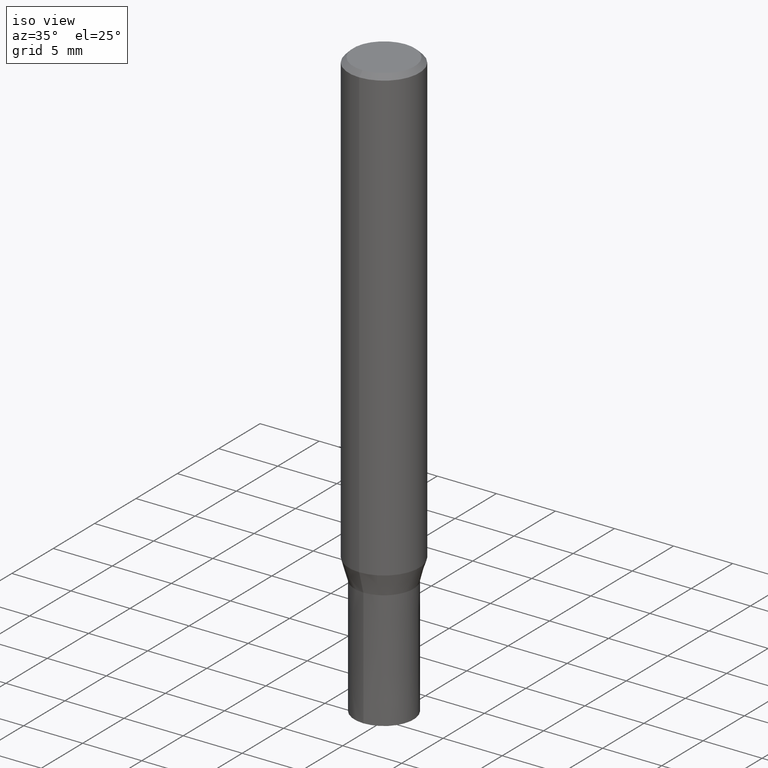
[diagram: clean part render]
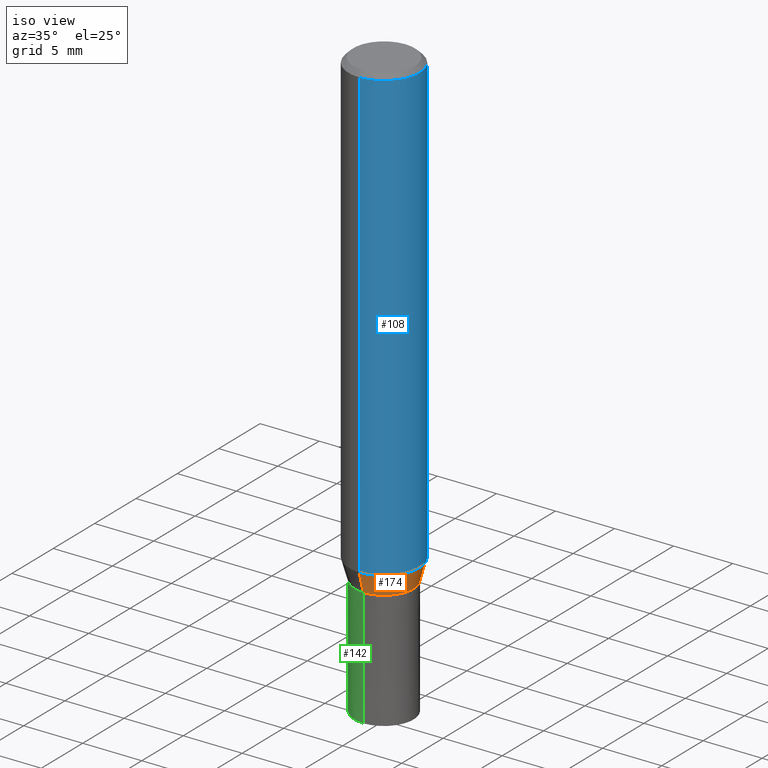
[diagram: same view with three faces highlighted in distinct colors, each labeled with its STEP entity id]
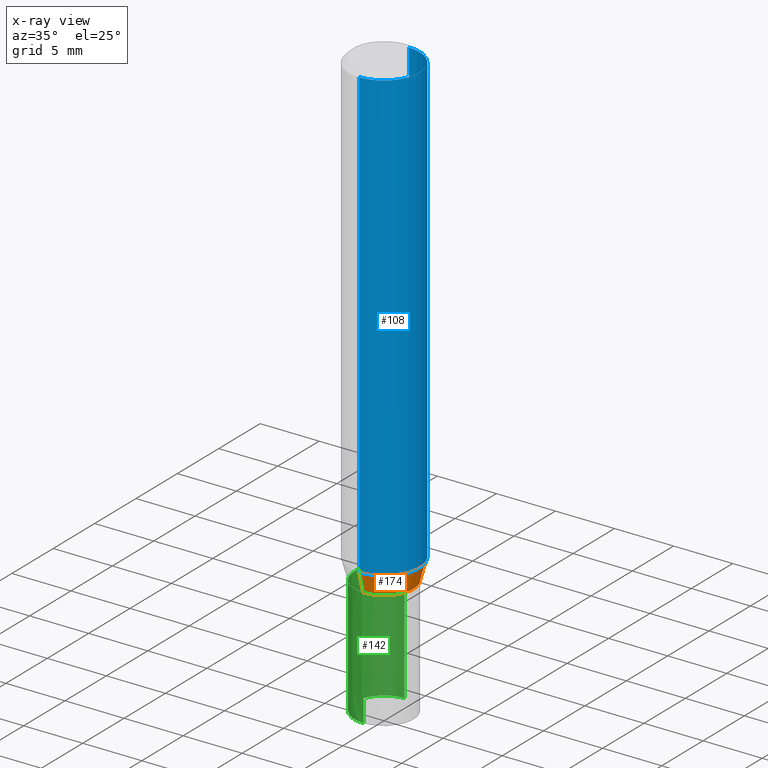
[diagram: x-ray of the same camera — body ghosted, the three highlighted faces saturated]
A machine part, iso view with three faces highlighted in distinct colors.
The next image is the same camera in x-ray (body ghosted, the three faces saturated) — at least one of them is partly hidden behind the body in this view.
Their STEP definitions:

[orange] entity #174 — the highlighted conical surface has half-angle 15.997 deg.
#128=VERTEX_POINT('',#257);
#130=EDGE_CURVE('',#172,#128,#259,.T.);
#132=VERTEX_POINT('',#261);
#134=EDGE_CURVE('',#128,#146,#263,.T.);
#144=EDGE_CURVE('',#172,#132,#275,.T.);
#146=VERTEX_POINT('',#277);
#172=VERTEX_POINT('',#305);
#174=ADVANCED_FACE('',(#307),#308,.T.);
#176=EDGE_CURVE('',#146,#132,#310,.T.);
#257=CARTESIAN_POINT('',(0.0,2.49995,-40.0));
#259=LINE('',#396,#397);
#261=CARTESIAN_POINT('',(3.67375783114944E-016,-2.99995,-38.256));
#263=CIRCLE('',#402,2.49995);
#275=CIRCLE('',#416,2.99995);
#277=CARTESIAN_POINT('',(3.06145465423825E-016,-2.49995,-40.0));
#305=CARTESIAN_POINT('',(0.0,2.99995,-38.256));
#307=FACE_OUTER_BOUND('',#458,.T.);
#308=CONICAL_SURFACE('',#459,2.74995,0.279208199033747);
#310=LINE('',#462,#463);
#396=CARTESIAN_POINT('',(-3.36760624269385E-016,2.74995,-39.128));
#397=VECTOR('',#547,1.0);
#402=AXIS2_PLACEMENT_3D('',#548,#549,#550);
#416=AXIS2_PLACEMENT_3D('',#569,#570,#571);
#458=EDGE_LOOP('',(#604,#605,#606,#607));
#459=AXIS2_PLACEMENT_3D('',#608,#609,#610);
#462=CARTESIAN_POINT('',(3.36760624269385E-016,-2.74995,-39.128));
#463=VECTOR('',#611,1.0);
#547=DIRECTION('',(3.37494895041124E-017,-0.275594597388538,-0.961273955691222));
#548=CARTESIAN_POINT('',(0.0,0.0,-40.0));
#549=DIRECTION('',(0.0,0.0,-1.0));
#550=DIRECTION('',(0.0,1.0,0.0));
#569=CARTESIAN_POINT('',(0.0,0.0,-38.256));
#570=DIRECTION('',(0.0,0.0,-1.0));
#571=DIRECTION('',(0.0,1.0,0.0));
#604=ORIENTED_EDGE('',*,*,#130,.F.);
#605=ORIENTED_EDGE('',*,*,#144,.T.);
#606=ORIENTED_EDGE('',*,*,#176,.F.);
#607=ORIENTED_EDGE('',*,*,#134,.F.);
#608=CARTESIAN_POINT('',(0.0,0.0,-39.128));
#609=DIRECTION('',(-0.0,-0.0,1.0));
#610=DIRECTION('',(0.0,1.0,0.0));
#611=DIRECTION('',(3.37494895041124E-017,-0.275594597388538,0.961273955691222));

[blue] entity #108 — the highlighted cylindrical surface (partial cylindrical patch) has radius 3 mm, axis along (-0, -0, 1).
#84=VERTEX_POINT('',#205);
#86=EDGE_CURVE('',#168,#84,#207,.T.);
#108=ADVANCED_FACE('',(#230),#231,.T.);
#148=EDGE_CURVE('',#180,#168,#279,.T.);
#154=VERTEX_POINT('',#286);
#158=EDGE_CURVE('',#180,#154,#290,.T.);
#168=VERTEX_POINT('',#301);
#170=EDGE_CURVE('',#84,#154,#303,.T.);
#180=VERTEX_POINT('',#314);
#205=CARTESIAN_POINT('',(3.67381906146713E-016,-3.0,-38.256));
#207=CIRCLE('',#335,3.0);
#230=FACE_OUTER_BOUND('',#362,.T.);
#231=CYLINDRICAL_SURFACE('',#363,3.0);
#279=LINE('',#421,#422);
#286=CARTESIAN_POINT('',(3.67381906146713E-016,-3.0,-0.399999999999999));
#290=CIRCLE('',#435,3.0);
#301=CARTESIAN_POINT('',(0.0,3.0,-38.256));
#303=LINE('',#453,#454);
#314=CARTESIAN_POINT('',(0.0,3.0,-0.399999999999999));
#335=AXIS2_PLACEMENT_3D('',#476,#477,#478);
#362=EDGE_LOOP('',(#499,#500,#501,#502));
#363=AXIS2_PLACEMENT_3D('',#503,#504,#505);
#421=CARTESIAN_POINT('',(-3.67381906146713E-016,3.0,-19.328));
#422=VECTOR('',#572,1.0);
#435=AXIS2_PLACEMENT_3D('',#584,#585,#586);
#453=CARTESIAN_POINT('',(3.67381906146713E-016,-3.0,-19.328));
#454=VECTOR('',#602,1.0);
#476=CARTESIAN_POINT('',(0.0,0.0,-38.256));
#477=DIRECTION('',(0.0,0.0,-1.0));
#478=DIRECTION('',(0.0,1.0,0.0));
#499=ORIENTED_EDGE('',*,*,#148,.F.);
#500=ORIENTED_EDGE('',*,*,#158,.T.);
#501=ORIENTED_EDGE('',*,*,#170,.F.);
#502=ORIENTED_EDGE('',*,*,#86,.F.);
#503=CARTESIAN_POINT('',(0.0,0.0,-19.328));
#504=DIRECTION('',(-0.0,-0.0,1.0));
#505=DIRECTION('',(0.0,1.0,0.0));
#572=DIRECTION('',(0.0,0.0,-1.0));
#584=CARTESIAN_POINT('',(0.0,0.0,-0.399999999999999));
#585=DIRECTION('',(0.0,0.0,-1.0));
#586=DIRECTION('',(0.0,1.0,0.0));
#602=DIRECTION('',(-0.0,-0.0,1.0));

[green] entity #142 — the highlighted conical surface has half-angle 0.001 deg.
#88=VERTEX_POINT('',#209);
#96=VERTEX_POINT('',#217);
#98=EDGE_CURVE('',#96,#120,#219,.T.);
#116=EDGE_CURVE('',#156,#88,#240,.T.);
#120=VERTEX_POINT('',#245);
#142=ADVANCED_FACE('',(#272),#273,.T.);
#150=EDGE_CURVE('',#120,#156,#281,.T.);
#156=VERTEX_POINT('',#288);
#164=EDGE_CURVE('',#96,#88,#296,.T.);
#209=CARTESIAN_POINT('',(0.0,2.5,-50.0));
#217=CARTESIAN_POINT('',(3.06151588455594E-016,-2.5,-50.0));
#219=LINE('',#350,#351);
#240=LINE('',#375,#376);
#245=CARTESIAN_POINT('',(3.06139342392056E-016,-2.4999,-40.0));
#272=FACE_OUTER_BOUND('',#412,.T.);
#273=CONICAL_SURFACE('',#413,2.49995,9.99999999968777E-006);
#281=CIRCLE('',#425,2.4999);
#288=CARTESIAN_POINT('',(0.0,2.4999,-40.0));
#296=CIRCLE('',#445,2.5);
#350=CARTESIAN_POINT('',(3.06145465423825E-016,-2.49995,-45.0));
#351=VECTOR('',#485,1.0);
#375=CARTESIAN_POINT('',(-3.06145465423825E-016,2.49995,-45.0));
#376=VECTOR('',#518,1.0);
#412=EDGE_LOOP('',(#562,#563,#564,#565));
#413=AXIS2_PLACEMENT_3D('',#566,#567,#568);
#425=AXIS2_PLACEMENT_3D('',#573,#574,#575);
#445=AXIS2_PLACEMENT_3D('',#591,#592,#593);
#485=DIRECTION('',(-1.22460635376373E-021,9.9999999995211E-006,0.99999999995));
#518=DIRECTION('',(-1.22460635376373E-021,9.9999999995211E-006,-0.99999999995));
#562=ORIENTED_EDGE('',*,*,#116,.T.);
#563=ORIENTED_EDGE('',*,*,#164,.F.);
#564=ORIENTED_EDGE('',*,*,#98,.T.);
#565=ORIENTED_EDGE('',*,*,#150,.T.);
#566=CARTESIAN_POINT('',(0.0,0.0,-45.0));
#567=DIRECTION('',(0.0,-0.0,-1.0));
#568=DIRECTION('',(0.0,1.0,0.0));
#573=CARTESIAN_POINT('',(0.0,0.0,-40.0));
#574=DIRECTION('',(0.0,0.0,-1.0));
#575=DIRECTION('',(0.0,1.0,0.0));
#591=CARTESIAN_POINT('',(0.0,0.0,-50.0));
#592=DIRECTION('',(0.0,0.0,-1.0));
#593=DIRECTION('',(0.0,1.0,0.0));